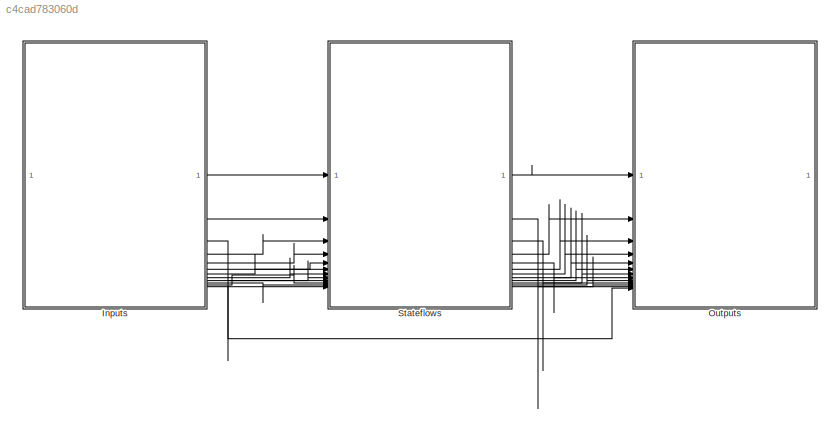
MODEL slx_c4cad783060d
KIND model
CONFIG AbsTol = auto
CONFIG EnableMultiTasking = on
CONFIG FixedStep = 1e-3
CONFIG MaxStep = auto
CONFIG MinStep = auto
CONFIG RelTol = 1e-3
CONFIG SampleTimeConstraint = Unconstrained
CONFIG SolverName = FixedStepAuto
CONFIG StartTime = 0.0
CONFIG StopTime = 10.0
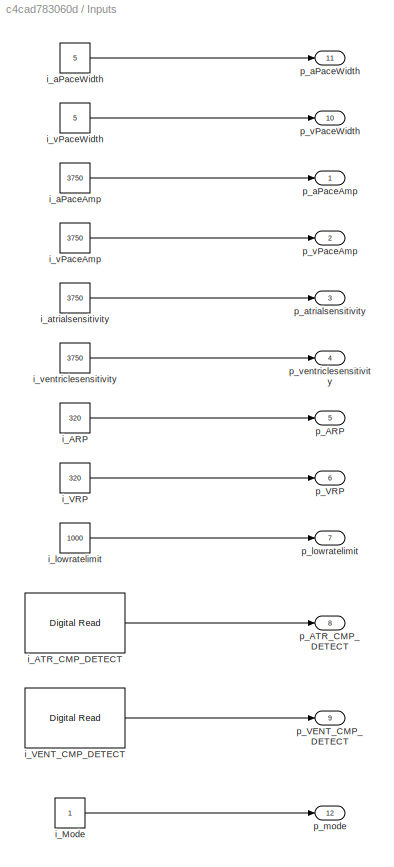
BLOCK [SubSystem] Inputs
BLOCK [Constant] Inputs/i_ARP
  OutDataTypeStr = double
  Value = 320
BLOCK [Reference] Inputs/i_ATR_CMP_DETECT  REF=frdmk64flib/Digital Read
  SourceBlock = frdmk64flib/Digital Read
  SourceType = freedomk64f.DigitalRead
BLOCK [Constant] Inputs/i_Mode
BLOCK [Reference] Inputs/i_VENT_CMP_DETECT  REF=frdmk64flib/Digital Read
  SourceBlock = frdmk64flib/Digital Read
  SourceType = freedomk64f.DigitalRead
BLOCK [Constant] Inputs/i_VRP
  OutDataTypeStr = double
  Value = 320
BLOCK [Constant] Inputs/i_aPaceAmp
  OutDataTypeStr = double
  Value = 3750
BLOCK [Constant] Inputs/i_aPaceWidth
  OutDataTypeStr = double
  Value = 5
BLOCK [Constant] Inputs/i_atrialsensitivity
  OutDataTypeStr = double
  Value = 3750
BLOCK [Constant] Inputs/i_lowratelimit
  OutDataTypeStr = double
  Value = 1000
BLOCK [Constant] Inputs/i_vPaceAmp
  OutDataTypeStr = double
  Value = 3750
BLOCK [Constant] Inputs/i_vPaceWidth
  OutDataTypeStr = double
  Value = 5
BLOCK [Constant] Inputs/i_ventriclesensitivity
  OutDataTypeStr = double
  Value = 3750
BLOCK [Outport] Inputs/p_ARP
  OutDataTypeStr = double
  Port = 5
  Unit = msec
BLOCK [Outport] Inputs/p_ATR_CMP_DETECT
  OutDataTypeStr = boolean
  Port = 8
BLOCK [Outport] Inputs/p_VENT_CMP_DETECT
  OutDataTypeStr = boolean
  Port = 9
BLOCK [Outport] Inputs/p_VRP
  OutDataTypeStr = double
  Port = 6
  Unit = msec
BLOCK [Outport] Inputs/p_aPaceAmp
  OutDataTypeStr = double
  Unit = mV
BLOCK [Outport] Inputs/p_aPaceWidth
  OutDataTypeStr = double
  Port = 11
  Unit = msec
BLOCK [Outport] Inputs/p_atrialsensitivity
  OutDataTypeStr = double
  Port = 3
  Unit = mV
BLOCK [Outport] Inputs/p_lowratelimit
  OutDataTypeStr = double
  Port = 7
  Unit = msec
BLOCK [Outport] Inputs/p_mode
  OutDataTypeStr = double
  Port = 12
BLOCK [Outport] Inputs/p_vPaceAmp
  OutDataTypeStr = double
  Port = 2
  Unit = mV
BLOCK [Outport] Inputs/p_vPaceWidth
  OutDataTypeStr = double
  Port = 10
  Unit = msec
BLOCK [Outport] Inputs/p_ventriclesensitivity
  OutDataTypeStr = double
  Port = 4
  Unit = mV
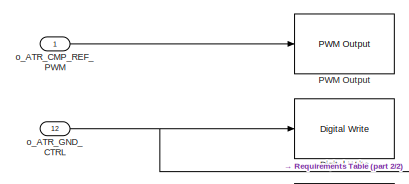
[diagram: Outputs - part 1/2, top left region]
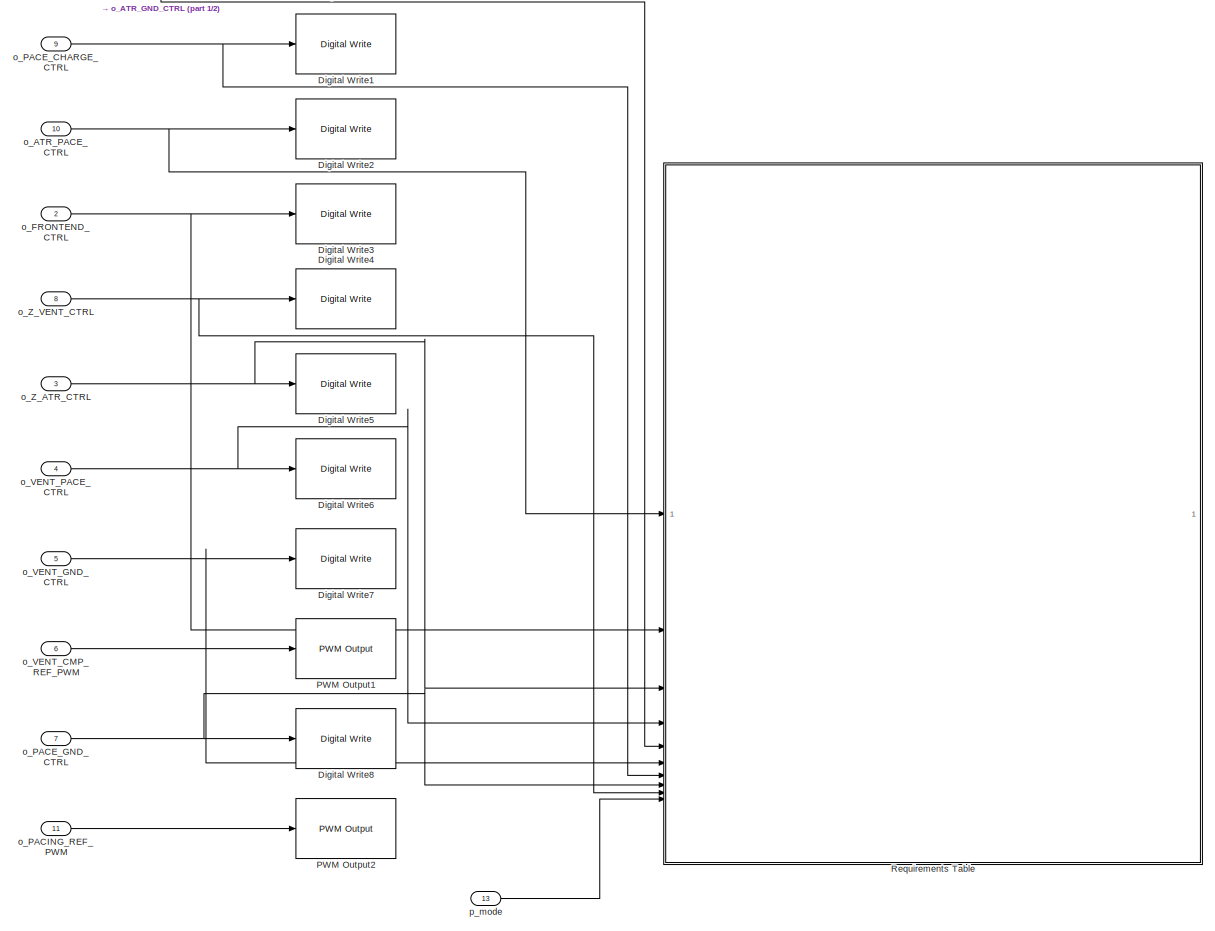
[diagram: Outputs - part 2/2, most of the canvas]
BLOCK [SubSystem] Outputs
BLOCK [Reference] Outputs/Digital Write  REF=frdmk64flib/Digital Write
  SourceBlock = frdmk64flib/Digital Write
  SourceType = freedomk64f.DigitalWrite
BLOCK [Reference] Outputs/Digital Write1  REF=frdmk64flib/Digital Write
  SourceBlock = frdmk64flib/Digital Write
  SourceType = freedomk64f.DigitalWrite
BLOCK [Reference] Outputs/Digital Write2  REF=frdmk64flib/Digital Write
  SourceBlock = frdmk64flib/Digital Write
  SourceType = freedomk64f.DigitalWrite
BLOCK [Reference] Outputs/Digital Write3  REF=frdmk64flib/Digital Write
  SourceBlock = frdmk64flib/Digital Write
  SourceType = freedomk64f.DigitalWrite
BLOCK [Reference] Outputs/Digital Write4  REF=frdmk64flib/Digital Write
  SourceBlock = frdmk64flib/Digital Write
  SourceType = freedomk64f.DigitalWrite
BLOCK [Reference] Outputs/Digital Write5  REF=frdmk64flib/Digital Write
  SourceBlock = frdmk64flib/Digital Write
  SourceType = freedomk64f.DigitalWrite
BLOCK [Reference] Outputs/Digital Write6  REF=frdmk64flib/Digital Write
  SourceBlock = frdmk64flib/Digital Write
  SourceType = freedomk64f.DigitalWrite
BLOCK [Reference] Outputs/Digital Write7  REF=frdmk64flib/Digital Write
  SourceBlock = frdmk64flib/Digital Write
  SourceType = freedomk64f.DigitalWrite
BLOCK [Reference] Outputs/Digital Write8  REF=frdmk64flib/Digital Write
  SourceBlock = frdmk64flib/Digital Write
  SourceType = freedomk64f.DigitalWrite
BLOCK [Reference] Outputs/PWM Output  REF=frdmk64flib/PWM Output
  SourceBlock = frdmk64flib/PWM Output
  SourceType = freedomk64f.PWMOutput
BLOCK [Reference] Outputs/PWM Output1  REF=frdmk64flib/PWM Output
  SourceBlock = frdmk64flib/PWM Output
  SourceType = freedomk64f.PWMOutput
BLOCK [Reference] Outputs/PWM Output2  REF=frdmk64flib/PWM Output
  SourceBlock = frdmk64flib/PWM Output
  SourceType = freedomk64f.PWMOutput
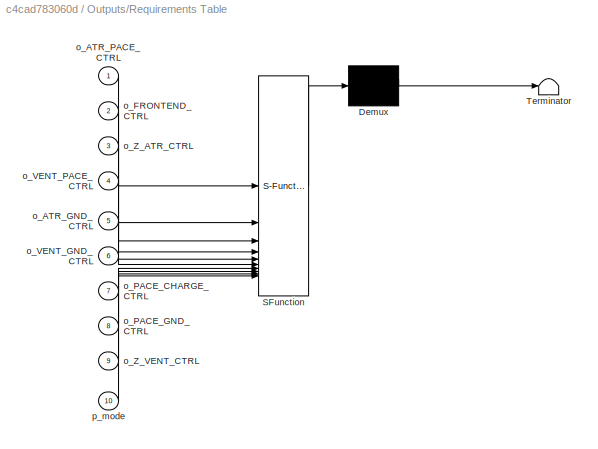
BLOCK [SubSystem] Outputs/Requirements Table
  ErrorFcn = Stateflow.Translate.translate
  PermitHierarchicalResolution = ExplicitOnly
  SFBlockType = Requirements Table
  TreatAsAtomicUnit = on
BLOCK [Demux] Outputs/Requirements Table/ Demux 
  Outputs = 1
BLOCK [S-Function] Outputs/Requirements Table/ SFunction 
  EnableBusSupport = on
  FunctionName = sf_sfun
  PortCounts = [10 1]
  SFcnIsStateOwnerBlock = off
  SFunctionDeploymentMode = off
  Tag = Stateflow S-Function 4
BLOCK [Terminator] Outputs/Requirements Table/ Terminator 
BLOCK [Inport] Outputs/Requirements Table/o_ATR_GND_CTRL
  Port = 5
BLOCK [Inport] Outputs/Requirements Table/o_ATR_PACE_CTRL
BLOCK [Inport] Outputs/Requirements Table/o_FRONTEND_CTRL
  Port = 2
BLOCK [Inport] Outputs/Requirements Table/o_PACE_CHARGE_CTRL
  Port = 7
BLOCK [Inport] Outputs/Requirements Table/o_PACE_GND_CTRL
  Port = 8
BLOCK [Inport] Outputs/Requirements Table/o_VENT_GND_CTRL
  Port = 6
BLOCK [Inport] Outputs/Requirements Table/o_VENT_PACE_CTRL
  Port = 4
BLOCK [Inport] Outputs/Requirements Table/o_Z_ATR_CTRL
  Port = 3
BLOCK [Inport] Outputs/Requirements Table/o_Z_VENT_CTRL
  Port = 9
BLOCK [Inport] Outputs/Requirements Table/p_mode
  Port = 10
BLOCK [Inport] Outputs/o_ATR_CMP_REF_PWM
BLOCK [Inport] Outputs/o_ATR_GND_CTRL
  Port = 12
BLOCK [Inport] Outputs/o_ATR_PACE_CTRL
  Port = 10
BLOCK [Inport] Outputs/o_FRONTEND_CTRL
  Port = 2
BLOCK [Inport] Outputs/o_PACE_CHARGE_CTRL
  Port = 9
BLOCK [Inport] Outputs/o_PACE_GND_CTRL
  Port = 7
BLOCK [Inport] Outputs/o_PACING_REF_PWM
  Port = 11
BLOCK [Inport] Outputs/o_VENT_CMP_REF_PWM
  Port = 6
BLOCK [Inport] Outputs/o_VENT_GND_CTRL
  Port = 5
BLOCK [Inport] Outputs/o_VENT_PACE_CTRL
  Port = 4
BLOCK [Inport] Outputs/o_Z_ATR_CTRL
  Port = 3
BLOCK [Inport] Outputs/o_Z_VENT_CTRL
  Port = 8
BLOCK [Inport] Outputs/p_mode
  Port = 13
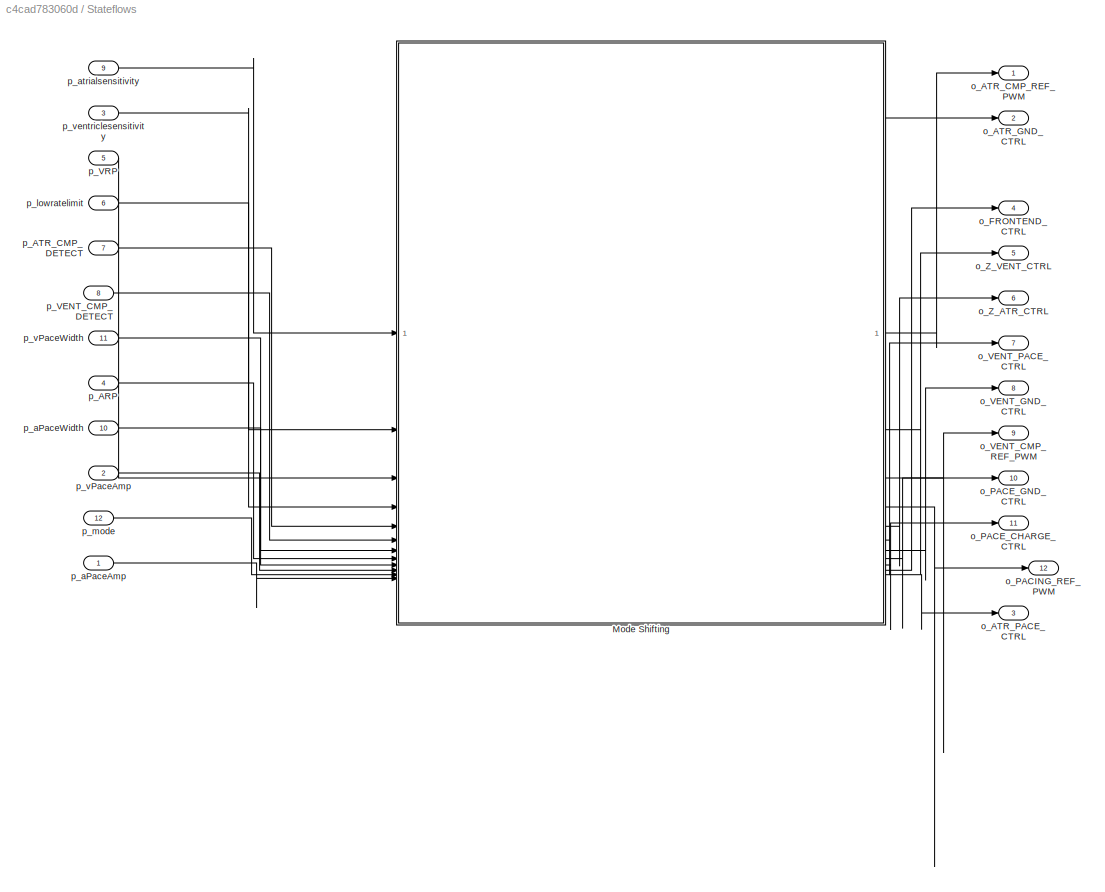
BLOCK [SubSystem] Stateflows
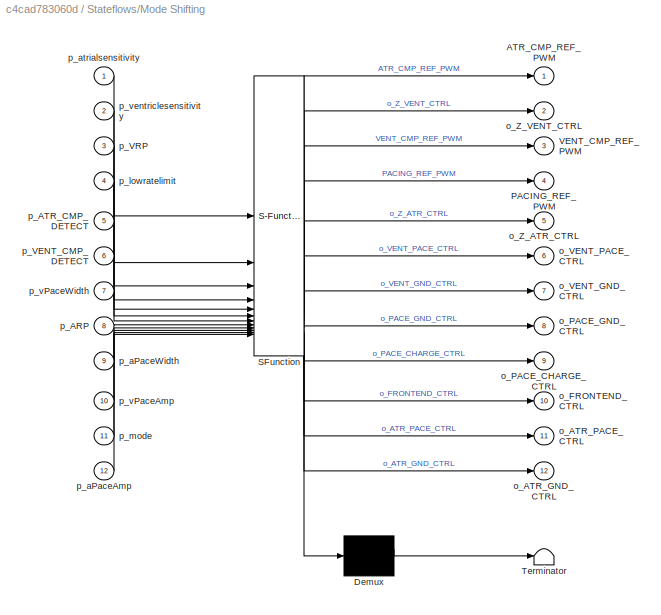
BLOCK [SubSystem] Stateflows/Mode Shifting
  ErrorFcn = Stateflow.Translate.translate
  PermitHierarchicalResolution = ExplicitOnly
  SFBlockType = Chart
  TreatAsAtomicUnit = on
BLOCK [Demux] Stateflows/Mode Shifting/ Demux 
  Outputs = 1
BLOCK [S-Function] Stateflows/Mode Shifting/ SFunction 
  EnableBusSupport = on
  FunctionName = sf_sfun
  PortCounts = [12 13]
  SFcnIsStateOwnerBlock = off
  SFunctionDeploymentMode = off
  Tag = Stateflow S-Function 3
BLOCK [Terminator] Stateflows/Mode Shifting/ Terminator 
BLOCK [Outport] Stateflows/Mode Shifting/ATR_CMP_REF_PWM
BLOCK [Outport] Stateflows/Mode Shifting/PACING_REF_PWM
  Port = 4
BLOCK [Outport] Stateflows/Mode Shifting/VENT_CMP_REF_PWM
  Port = 3
BLOCK [Outport] Stateflows/Mode Shifting/o_ATR_GND_CTRL
  Port = 12
BLOCK [Outport] Stateflows/Mode Shifting/o_ATR_PACE_CTRL
  Port = 11
BLOCK [Outport] Stateflows/Mode Shifting/o_FRONTEND_CTRL
  Port = 10
BLOCK [Outport] Stateflows/Mode Shifting/o_PACE_CHARGE_CTRL
  Port = 9
BLOCK [Outport] Stateflows/Mode Shifting/o_PACE_GND_CTRL
  Port = 8
BLOCK [Outport] Stateflows/Mode Shifting/o_VENT_GND_CTRL
  Port = 7
BLOCK [Outport] Stateflows/Mode Shifting/o_VENT_PACE_CTRL
  Port = 6
BLOCK [Outport] Stateflows/Mode Shifting/o_Z_ATR_CTRL
  Port = 5
BLOCK [Outport] Stateflows/Mode Shifting/o_Z_VENT_CTRL
  Port = 2
BLOCK [Inport] Stateflows/Mode Shifting/p_ARP
  Port = 8
BLOCK [Inport] Stateflows/Mode Shifting/p_ATR_CMP_DETECT
  Port = 5
BLOCK [Inport] Stateflows/Mode Shifting/p_VENT_CMP_DETECT
  Port = 6
BLOCK [Inport] Stateflows/Mode Shifting/p_VRP
  Port = 3
BLOCK [Inport] Stateflows/Mode Shifting/p_aPaceAmp
  Port = 12
BLOCK [Inport] Stateflows/Mode Shifting/p_aPaceWidth
  Port = 9
BLOCK [Inport] Stateflows/Mode Shifting/p_atrialsensitivity
BLOCK [Inport] Stateflows/Mode Shifting/p_lowratelimit
  Port = 4
BLOCK [Inport] Stateflows/Mode Shifting/p_mode
  Port = 11
BLOCK [Inport] Stateflows/Mode Shifting/p_vPaceAmp
  Port = 10
BLOCK [Inport] Stateflows/Mode Shifting/p_vPaceWidth
  Port = 7
BLOCK [Inport] Stateflows/Mode Shifting/p_ventriclesensitivity
  Port = 2
BLOCK [Outport] Stateflows/o_ATR_CMP_REF_PWM
BLOCK [Outport] Stateflows/o_ATR_GND_CTRL
  Port = 2
BLOCK [Outport] Stateflows/o_ATR_PACE_CTRL
  Port = 3
BLOCK [Outport] Stateflows/o_FRONTEND_CTRL
  Port = 4
BLOCK [Outport] Stateflows/o_PACE_CHARGE_CTRL
  Port = 11
BLOCK [Outport] Stateflows/o_PACE_GND_CTRL
  Port = 10
BLOCK [Outport] Stateflows/o_PACING_REF_PWM
  Port = 12
BLOCK [Outport] Stateflows/o_VENT_CMP_REF_PWM
  Port = 9
BLOCK [Outport] Stateflows/o_VENT_GND_CTRL
  Port = 8
BLOCK [Outport] Stateflows/o_VENT_PACE_CTRL
  Port = 7
BLOCK [Outport] Stateflows/o_Z_ATR_CTRL
  Port = 6
BLOCK [Outport] Stateflows/o_Z_VENT_CTRL
  Port = 5
BLOCK [Inport] Stateflows/p_ARP
  Port = 4
BLOCK [Inport] Stateflows/p_ATR_CMP_DETECT
  Port = 7
BLOCK [Inport] Stateflows/p_VENT_CMP_DETECT
  Port = 8
BLOCK [Inport] Stateflows/p_VRP
  Port = 5
BLOCK [Inport] Stateflows/p_aPaceAmp
BLOCK [Inport] Stateflows/p_aPaceWidth
  Port = 10
BLOCK [Inport] Stateflows/p_atrialsensitivity
  Port = 9
BLOCK [Inport] Stateflows/p_lowratelimit
  Port = 6
BLOCK [Inport] Stateflows/p_mode
  Port = 12
BLOCK [Inport] Stateflows/p_vPaceAmp
  Port = 2
BLOCK [Inport] Stateflows/p_vPaceWidth
  Port = 11
BLOCK [Inport] Stateflows/p_ventriclesensitivity
  Port = 3
LINE Inputs/i_ARP:1 -> Inputs/p_ARP:1
LINE Inputs/i_ATR_CMP_DETECT:1 -> Inputs/p_ATR_CMP_DETECT:1
LINE Inputs/i_Mode:1 -> Inputs/p_mode:1
LINE Inputs/i_VENT_CMP_DETECT:1 -> Inputs/p_VENT_CMP_DETECT:1
LINE Inputs/i_VRP:1 -> Inputs/p_VRP:1
LINE Inputs/i_aPaceAmp:1 -> Inputs/p_aPaceAmp:1
LINE Inputs/i_aPaceWidth:1 -> Inputs/p_aPaceWidth:1
LINE Inputs/i_atrialsensitivity:1 -> Inputs/p_atrialsensitivity:1
LINE Inputs/i_lowratelimit:1 -> Inputs/p_lowratelimit:1
LINE Inputs/i_vPaceAmp:1 -> Inputs/p_vPaceAmp:1
LINE Inputs/i_vPaceWidth:1 -> Inputs/p_vPaceWidth:1
LINE Inputs/i_ventriclesensitivity:1 -> Inputs/p_ventriclesensitivity:1
LINE Inputs:1 -> Stateflows:1
LINE Inputs:10 -> Stateflows:11
LINE Inputs:11 -> Stateflows:10
NET Inputs:12 -> Outputs:13, Stateflows:12
LINE Inputs:2 -> Stateflows:2
LINE Inputs:3 -> Stateflows:9
LINE Inputs:4 -> Stateflows:3
LINE Inputs:5 -> Stateflows:4
LINE Inputs:6 -> Stateflows:5
LINE Inputs:7 -> Stateflows:6
LINE Inputs:8 -> Stateflows:7
LINE Inputs:9 -> Stateflows:8
LINE Outputs/o_ATR_CMP_REF_PWM:1 -> Outputs/PWM Output:1
NET Outputs/o_ATR_GND_CTRL:1 -> Outputs/Digital Write:1, Outputs/Requirements Table:5
NET Outputs/o_ATR_PACE_CTRL:1 -> Outputs/Digital Write2:1, Outputs/Requirements Table:1
NET Outputs/o_FRONTEND_CTRL:1 -> Outputs/Digital Write3:1, Outputs/Requirements Table:2
NET Outputs/o_PACE_CHARGE_CTRL:1 -> Outputs/Digital Write1:1, Outputs/Requirements Table:7
NET Outputs/o_PACE_GND_CTRL:1 -> Outputs/Digital Write8:1, Outputs/Requirements Table:8
LINE Outputs/o_PACING_REF_PWM:1 -> Outputs/PWM Output2:1
LINE Outputs/o_VENT_CMP_REF_PWM:1 -> Outputs/PWM Output1:1
NET Outputs/o_VENT_GND_CTRL:1 -> Outputs/Digital Write7:1, Outputs/Requirements Table:6
NET Outputs/o_VENT_PACE_CTRL:1 -> Outputs/Digital Write6:1, Outputs/Requirements Table:4
NET Outputs/o_Z_ATR_CTRL:1 -> Outputs/Digital Write5:1, Outputs/Requirements Table:3
NET Outputs/o_Z_VENT_CTRL:1 -> Outputs/Digital Write4:1, Outputs/Requirements Table:9
LINE Outputs/p_mode:1 -> Outputs/Requirements Table:10
LINE Stateflows/Mode Shifting:1 -> Stateflows/o_ATR_CMP_REF_PWM:1
LINE Stateflows/Mode Shifting:10 -> Stateflows/o_FRONTEND_CTRL:1
LINE Stateflows/Mode Shifting:11 -> Stateflows/o_ATR_PACE_CTRL:1
LINE Stateflows/Mode Shifting:12 -> Stateflows/o_ATR_GND_CTRL:1
LINE Stateflows/Mode Shifting:2 -> Stateflows/o_Z_VENT_CTRL:1
LINE Stateflows/Mode Shifting:3 -> Stateflows/o_VENT_CMP_REF_PWM:1
LINE Stateflows/Mode Shifting:4 -> Stateflows/o_PACING_REF_PWM:1
LINE Stateflows/Mode Shifting:5 -> Stateflows/o_Z_ATR_CTRL:1
LINE Stateflows/Mode Shifting:6 -> Stateflows/o_VENT_PACE_CTRL:1
LINE Stateflows/Mode Shifting:7 -> Stateflows/o_VENT_GND_CTRL:1
LINE Stateflows/Mode Shifting:8 -> Stateflows/o_PACE_GND_CTRL:1
LINE Stateflows/Mode Shifting:9 -> Stateflows/o_PACE_CHARGE_CTRL:1
LINE Stateflows/p_ARP:1 -> Stateflows/Mode Shifting:8
LINE Stateflows/p_ATR_CMP_DETECT:1 -> Stateflows/Mode Shifting:5
LINE Stateflows/p_VENT_CMP_DETECT:1 -> Stateflows/Mode Shifting:6
LINE Stateflows/p_VRP:1 -> Stateflows/Mode Shifting:3
LINE Stateflows/p_aPaceAmp:1 -> Stateflows/Mode Shifting:12
LINE Stateflows/p_aPaceWidth:1 -> Stateflows/Mode Shifting:9
LINE Stateflows/p_atrialsensitivity:1 -> Stateflows/Mode Shifting:1
LINE Stateflows/p_lowratelimit:1 -> Stateflows/Mode Shifting:4
LINE Stateflows/p_mode:1 -> Stateflows/Mode Shifting:11
LINE Stateflows/p_vPaceAmp:1 -> Stateflows/Mode Shifting:10
LINE Stateflows/p_vPaceWidth:1 -> Stateflows/Mode Shifting:7
LINE Stateflows/p_ventriclesensitivity:1 -> Stateflows/Mode Shifting:2
LINE Stateflows:1 -> Outputs:1
LINE Stateflows:10 -> Outputs:7
LINE Stateflows:11 -> Outputs:9
LINE Stateflows:12 -> Outputs:11
LINE Stateflows:2 -> Outputs:12
LINE Stateflows:3 -> Outputs:10
LINE Stateflows:4 -> Outputs:2
LINE Stateflows:5 -> Outputs:8
LINE Stateflows:6 -> Outputs:3
LINE Stateflows:7 -> Outputs:4
LINE Stateflows:8 -> Outputs:5
LINE Stateflows:9 -> Outputs:6
note: NET lines group one-source signal fan-out (src -> all destinations, sorted); 1:1 wires keep LINE
CHART Stateflows/Mode Shifting states=11 transitions=17
  STATE_LABEL 'AOOPACING \nentry:\n%AV pacing\no_PACE_CHARGE_CTRL= false;\no_PACE_GND_CTRL = true;\no_ATR_PACE_CTRL = true;\no_ATR_GND_CTRL = false;\no_VENT_GND_CTRL = false;\no_VENT_PACE_CTRL =  false;\n'
  STATE_LABEL 'VOOPACING \nentry:\n%AV pacing\no_PACE_CHARGE_CTRL= false;\no_PACE_GND_CTRL = true;\no_ATR_PACE_CTRL = false;\no_ATR_GND_CTRL = false;\no_VENT_GND_CTRL = false;\no_VENT_PACE_CTRL =  true;\n'
  STATE_LABEL 'AAIPACINGHEART\nentry:\n%AV pacing\no_PACE_CHARGE_CTRL= false;\no_PACE_GND_CTRL = true;\no_ATR_PACE_CTRL = true;\no_ATR_GND_CTRL = false;\no_VENT_GND_CTRL = false;\no_VENT_PACE_CTRL =  false;\n%SENSING OFF\no_FRONTEND_CTRL = false;'
  STATE_LABEL 'VVIPACINGHEART\nentry:\n%AV pacing\no_PACE_CHARGE_CTRL= false;\no_PACE_GND_CTRL = true;\no_ATR_PACE_CTRL = false;\no_ATR_GND_CTRL = false;\no_VENT_GND_CTRL = false;\no_VENT_PACE_CTRL =  true;\n%SENSING OFF\no_FRONTEND_CTRL = false;'
  STATE_LABEL 'AAIDETECTION\nentry:\n%SENSING ON\no_FRONTEND_CTRL = true;'
  STATE_LABEL 'VVIDETECTION\nentry:\n%SENSING ON\no_FRONTEND_CTRL = true;'
  STATE_LABEL 'AOOCHARGINGDISCHARGING\nentry:\n%To charge C22\no_ATR_PACE_CTRL = false;\no_PACE_CHARGE_CTRL = true;\n%To discharge blocking capacitor\nentry:\no_PACE_GND_CTRL = true;\no_VENT_PACE_CTRL = false;\no_ATR_PACE_CTRL = false;\no_ATR_GND_CTRL = true;\n'
  STATE_LABEL 'VOOCHARGINGDISCHARGING\nentry:\n%To charge C22\no_VENT_PACE_CTRL = false;\no_PACE_CHARGE_CTRL = true;\no_ATR_PACE_CTRL = false;\n%To discharge blocking capacitor\nentry:\no_PACE_GND_CTRL = true;\no_VENT_PACE_CTRL = false;\no_ATR_PACE_CTRL = false;\no_VENT_GND_CTRL = true;\n'
  STATE_LABEL 'AAICHARGINGDISCHARGING\nentry:\n%To charge C22\no_ATR_PACE_CTRL = false;\no_PACE_CHARGE_CTRL = true;\n%To discharge blocking capacitor\nentry:\no_PACE_GND_CTRL = true;\no_VENT_PACE_CTRL = false;\no_ATR_PACE_CTRL = false;\no_ATR_GND_CTRL = true;\n'
  STATE_LABEL 'VVICHARGINGDISCHARGING\nentry:\n%To charge C22\no_VENT_PACE_CTRL = false;\no_PACE_CHARGE_CTRL = true;\no_ATR_PACE_CTRL = false;\n%To discharge blocking capacitor\nentry:\no_PACE_GND_CTRL = true;\no_VENT_PACE_CTRL = false;\no_ATR_PACE_CTRL = false;\no_VENT_GND_CTRL = true;\n'
  STATE_LABEL 'DEFAULTSTATE\n\no_Z_ATR_CTRL = false;\no_Z_VENT_CTRL = false;\no_VENT_PACE_CTRL = false;\no_ATR_PACE_CTRL = false;\nVPACING_REF_PWM = (p_vPaceAmp/5000)*100;\nAPACING_REF_PWM = (p_aPaceAmp/5000)*100;\no_FRONTEND_CTRL = false;\nATR_CMP_REF_PWM = (p_atrialsensitivity/5000)*100;\nVENT_CMP_REF_PWM = (p_ventriclesensitivity/5000)*100;\no_PACE_CHARGE_CTRL = false;\no_ATR_GND_CTRL = false;\no_VENT_GND_CTRL = false;\no_...<+23ch>'
CHART Outputs/Requirements Table states=0 transitions=68
CHART  states=0 transitions=0
CHART  states=0 transitions=0
